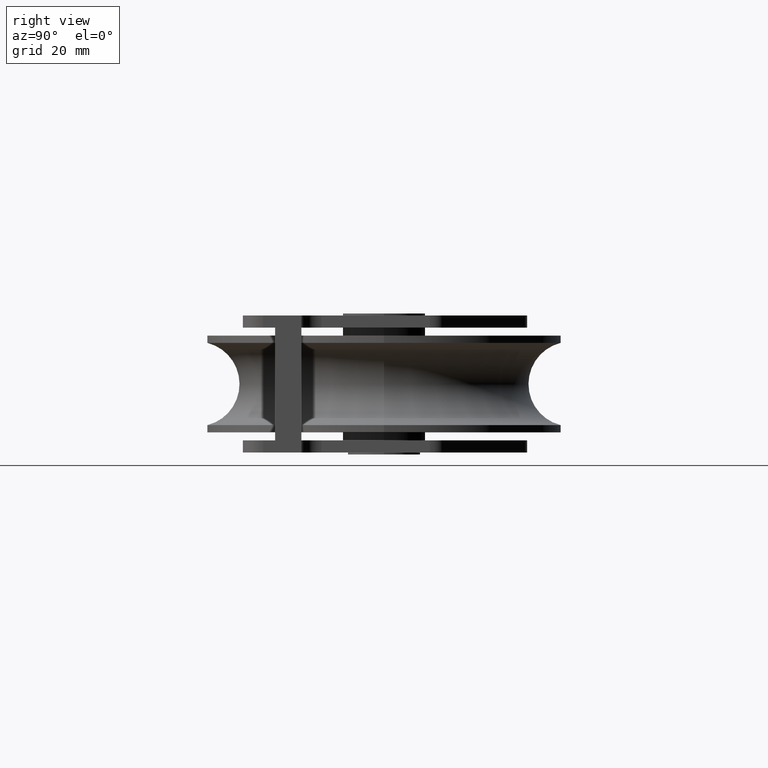
[diagram: clean part render]
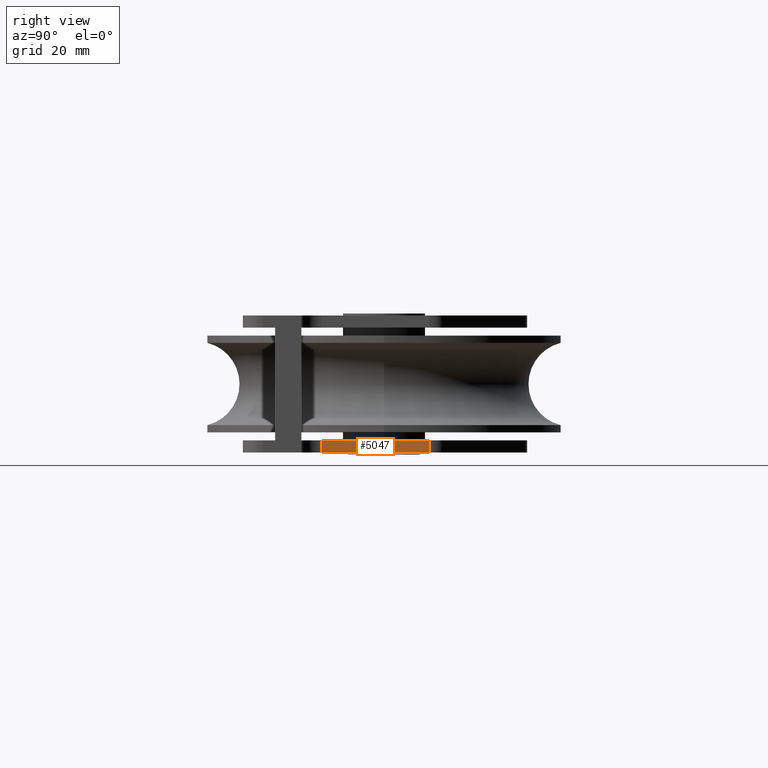
[diagram: same view with one face highlighted and labeled with its STEP entity id]
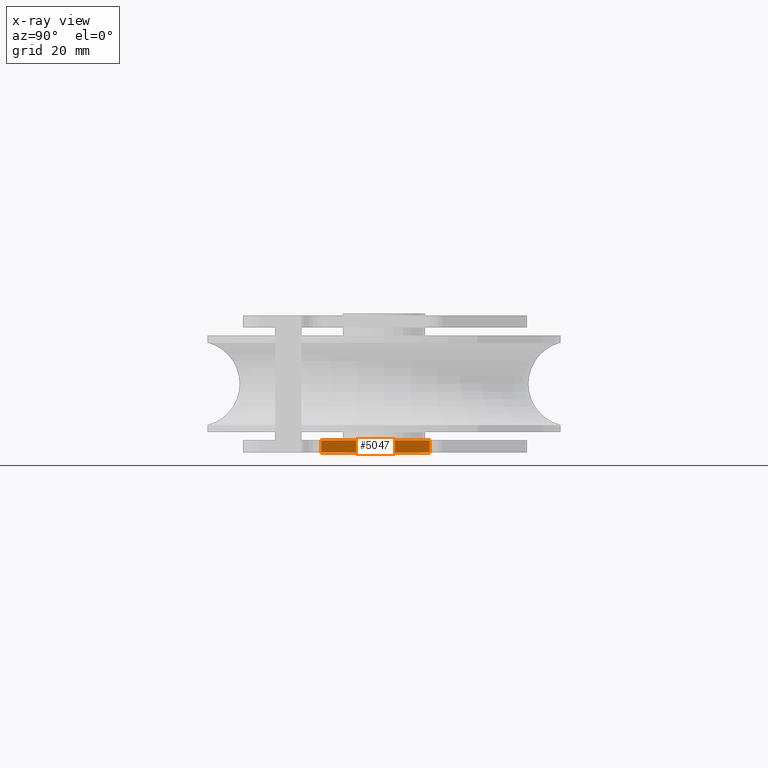
[diagram: x-ray of the same camera — body ghosted, the highlighted face saturated]
A machine part, right view. The second image highlights one B-rep face of the part: STEP entity #5047.
The next image is the same camera in x-ray: the body ghosted, the highlighted face saturated — about 0% of this face is hidden behind the body in this view.
In plain terms, the highlighted planar face has unit normal (-1, -0, 0).
Its self-contained STEP definition (entity closure, byte-faithful):
#263 = DIRECTION ( 'NONE',  ( 2.029901050613973900E-016, -1.000000000000000000, 0.0000000000000000000 ) ) ;
#386 = CARTESIAN_POINT ( 'NONE',  ( 43.50000000000000000, 13.68340958939084300, -14.00000000000000000 ) ) ;
#577 = EDGE_CURVE ( 'NONE', #9072, #3843, #9461, .T. ) ;
#616 = DIRECTION ( 'NONE',  ( 0.0000000000000000000, 0.0000000000000000000, 1.000000000000000000 ) ) ;
#811 = DIRECTION ( 'NONE',  ( -0.0000000000000000000, -0.0000000000000000000, -1.000000000000000000 ) ) ;
#858 = CARTESIAN_POINT ( 'NONE',  ( 43.50000000000000700, -15.50000000000000900, -17.00000000000000000 ) ) ;
#1226 = LINE ( 'NONE', #386, #12735 ) ;
#1621 = LINE ( 'NONE', #2903, #12237 ) ;
#1704 = EDGE_CURVE ( 'NONE', #10553, #9072, #1621, .T. ) ;
#2535 = PLANE ( 'NONE',  #3476 ) ;
#2729 = VECTOR ( 'NONE', #811, 1000.000000000000000 ) ;
#2903 = CARTESIAN_POINT ( 'NONE',  ( 43.50000000000000000, 13.68340958939084300, -17.00000000000000000 ) ) ;
#3054 = EDGE_CURVE ( 'NONE', #9831, #10553, #3413, .T. ) ;
#3413 = LINE ( 'NONE', #858, #2729 ) ;
#3476 = AXIS2_PLACEMENT_3D ( 'NONE', #12451, #9216, #263 ) ;
#3843 = VERTEX_POINT ( 'NONE', #5873 ) ;
#3958 = DIRECTION ( 'NONE',  ( -2.029901050613973900E-016, 1.000000000000000000, 0.0000000000000000000 ) ) ;
#4304 = ORIENTED_EDGE ( 'NONE', *, *, #1704, .T. ) ;
#4815 = DIRECTION ( 'NONE',  ( -2.029901050613973900E-016, 1.000000000000000000, 0.0000000000000000000 ) ) ;
#5047 = ADVANCED_FACE ( 'NONE', ( #7560 ), #2535, .F. ) ;
#5540 = EDGE_LOOP ( 'NONE', ( #5842, #7150, #4304, #13178 ) ) ;
#5842 = ORIENTED_EDGE ( 'NONE', *, *, #7621, .F. ) ;
#5873 = CARTESIAN_POINT ( 'NONE',  ( 43.50000000000000000, 11.35187129861583900, -14.00000000000000000 ) ) ;
#7006 = CARTESIAN_POINT ( 'NONE',  ( 43.50000000000000700, -15.50000000000000700, -17.00000000000000000 ) ) ;
#7150 = ORIENTED_EDGE ( 'NONE', *, *, #3054, .T. ) ;
#7560 = FACE_OUTER_BOUND ( 'NONE', #5540, .T. ) ;
#7621 = EDGE_CURVE ( 'NONE', #9831, #3843, #1226, .T. ) ;
#7984 = CARTESIAN_POINT ( 'NONE',  ( 43.50000000000000000, 11.35187129861583900, -17.00000000000000000 ) ) ;
#9072 = VERTEX_POINT ( 'NONE', #7984 ) ;
#9216 = DIRECTION ( 'NONE',  ( -1.000000000000000000, -2.029901050613973900E-016, 0.0000000000000000000 ) ) ;
#9461 = LINE ( 'NONE', #11736, #11575 ) ;
#9696 = CARTESIAN_POINT ( 'NONE',  ( 43.50000000000000700, -15.50000000000000700, -14.00000000000000000 ) ) ;
#9831 = VERTEX_POINT ( 'NONE', #9696 ) ;
#10553 = VERTEX_POINT ( 'NONE', #7006 ) ;
#11575 = VECTOR ( 'NONE', #616, 1000.000000000000000 ) ;
#11736 = CARTESIAN_POINT ( 'NONE',  ( 43.50000000000000000, 11.35187129861583900, -17.00000000000000000 ) ) ;
#12237 = VECTOR ( 'NONE', #3958, 1000.000000000000000 ) ;
#12451 = CARTESIAN_POINT ( 'NONE',  ( 43.50000000000000000, 13.68340958939084300, -17.00000000000000000 ) ) ;
#12735 = VECTOR ( 'NONE', #4815, 1000.000000000000000 ) ;
#13178 = ORIENTED_EDGE ( 'NONE', *, *, #577, .T. ) ;